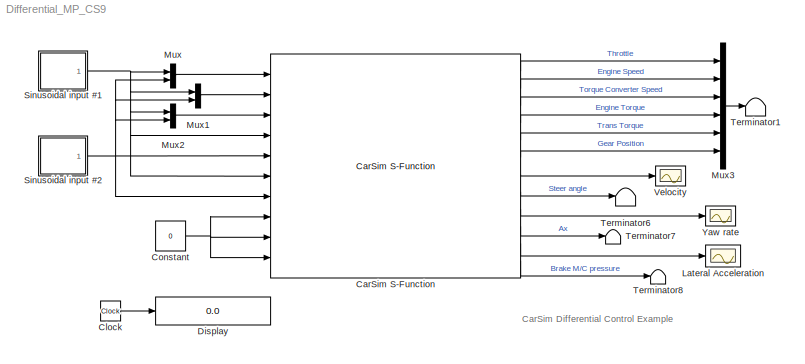
MODEL Differential_MP_CS9
KIND model
BLOCK [Reference] CarSim S-Function  REF=Solver_SF/CarSim S-Function
  Ports = [10, 12]
  Priority = 1
  SID = 1
  SIMFILE = simfile.sim
  SourceBlock = Solver_SF/CarSim S-Function
  SourceType = Vehicle math model library
BLOCK [Clock] Clock
  Decimation = 10
  SID = 2
BLOCK [Constant] Constant
  SID = 3
  Value = 0
BLOCK [Display] Display
  Decimation = 100
  Format = bank
  Lockdown = off
  Ports = [1]
  SID = 4
BLOCK [Scope] Lateral Acceleration
  DataFormat = Array
  Floating = off
  LimitDataPoints = off
  NumInputPorts = 1
  Ports = [1]
  SID = 5
  SampleTime = 100
  TickLabels = on
  YMax = 1
  YMin = -1
  ZoomMode = yonly
BLOCK [Mux] Mux
  DisplayOption = bar
  Inputs = 2
  Ports = [2, 1]
  SID = 6
BLOCK [Mux] Mux1
  DisplayOption = bar
  Inputs = 2
  Ports = [2, 1]
  SID = 7
BLOCK [Mux] Mux2
  DisplayOption = bar
  Inputs = 2
  Ports = [2, 1]
  SID = 8
BLOCK [Mux] Mux3
  DisplayOption = bar
  Inputs = 6
  Ports = [6, 1]
  SID = 9
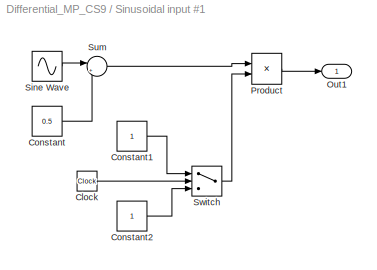
BLOCK [SubSystem] Sinusoidal input #1
  FunctionWithSeparateData = off
  MaskHideContents = off
  MinAlgLoopOccurrences = off
  Opaque = off
  Ports = [0, 1]
  PropExecContextOutsideSubsystem = off
  RTWSystemCode = Auto
  RequestExecContextInheritance = off
  SID = 10
BLOCK [Clock] Sinusoidal input #1/Clock
  Decimation = 10
  SID = 11
BLOCK [Constant] Sinusoidal input #1/Constant
  SID = 12
  Value = 0.5
BLOCK [Constant] Sinusoidal input #1/Constant1
  SID = 13
BLOCK [Constant] Sinusoidal input #1/Constant2
  SID = 14
BLOCK [Outport] Sinusoidal input #1/Out1
  IconDisplay = Port number
  SID = 19
BLOCK [Product] Sinusoidal input #1/Product
  Ports = [2, 1]
  RndMeth = Floor
  SID = 15
BLOCK [Sin] Sinusoidal input #1/Sine Wave
  Amplitude = 0.5
  Frequency = 0.25*2*pi
  Phase = 3/2*pi
  Ports = [0, 1]
  SID = 16
  SampleTime = 0
BLOCK [Sum] Sinusoidal input #1/Sum
  IconShape = round
  Inputs = |++
  Ports = [2, 1]
  SID = 17
BLOCK [Switch] Sinusoidal input #1/Switch
  SID = 18
  Threshold = 2
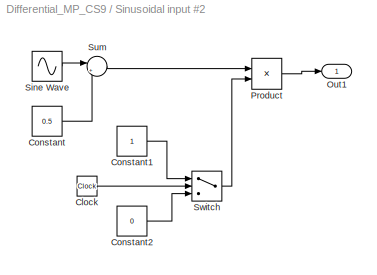
BLOCK [SubSystem] Sinusoidal input #2
  FunctionWithSeparateData = off
  MaskHideContents = off
  MinAlgLoopOccurrences = off
  Opaque = off
  Ports = [0, 1]
  PropExecContextOutsideSubsystem = off
  RTWSystemCode = Auto
  RequestExecContextInheritance = off
  SID = 20
BLOCK [Clock] Sinusoidal input #2/Clock
  Decimation = 10
  SID = 21
BLOCK [Constant] Sinusoidal input #2/Constant
  SID = 22
  Value = 0.5
BLOCK [Constant] Sinusoidal input #2/Constant1
  SID = 23
BLOCK [Constant] Sinusoidal input #2/Constant2
  SID = 24
  Value = 0
BLOCK [Outport] Sinusoidal input #2/Out1
  IconDisplay = Port number
  SID = 29
BLOCK [Product] Sinusoidal input #2/Product
  Ports = [2, 1]
  RndMeth = Floor
  SID = 25
BLOCK [Sin] Sinusoidal input #2/Sine Wave
  Amplitude = 0.5
  Frequency = 0.25*2*pi
  Phase = 1/2*pi
  Ports = [0, 1]
  SID = 26
  SampleTime = 0
BLOCK [Sum] Sinusoidal input #2/Sum
  IconShape = round
  Inputs = |++
  Ports = [2, 1]
  SID = 27
BLOCK [Switch] Sinusoidal input #2/Switch
  SID = 28
  Threshold = 2
BLOCK [Terminator] Terminator1
  SID = 30
BLOCK [Terminator] Terminator6
  SID = 31
BLOCK [Terminator] Terminator7
  SID = 32
BLOCK [Terminator] Terminator8
  SID = 33
BLOCK [Scope] Velocity
  DataFormat = Array
  Floating = off
  LimitDataPoints = off
  NumInputPorts = 1
  Ports = [1]
  SID = 34
  SampleTime = 100
  TickLabels = on
  YMax = 200
  YMin = 0
  ZoomMode = yonly
BLOCK [Scope] Yaw rate
  DataFormat = Array
  Floating = off
  LimitDataPoints = off
  NumInputPorts = 1
  Ports = [1]
  SID = 35
  SampleTime = 100
  TickLabels = on
  YMax = 20
  YMin = -20
  ZoomMode = yonly
ANNOTATION (root): CarSim Differential Control Example
LINE CarSim S-Function:1 -> Mux3:1
LINE CarSim S-Function:10 -> Terminator7:1
LINE CarSim S-Function:11 -> Lateral Acceleration:1
LINE CarSim S-Function:12 -> Terminator8:1
LINE CarSim S-Function:2 -> Mux3:2
LINE CarSim S-Function:3 -> Mux3:3
LINE CarSim S-Function:4 -> Mux3:4
LINE CarSim S-Function:5 -> Mux3:5
LINE CarSim S-Function:6 -> Mux3:6
LINE CarSim S-Function:7 -> Velocity:1
LINE CarSim S-Function:8 -> Terminator6:1
LINE CarSim S-Function:9 -> Yaw rate:1
LINE Clock:1 -> Display:1
NET Constant:1 -> CarSim S-Function:10, CarSim S-Function:8, CarSim S-Function:9
LINE Mux1:1 -> CarSim S-Function:2
LINE Mux2:1 -> CarSim S-Function:3
LINE Mux3:1 -> Terminator1:1
LINE Mux:1 -> CarSim S-Function:1
LINE Sinusoidal input #1/Clock:1 -> Sinusoidal input #1/Switch:2
LINE Sinusoidal input #1/Constant1:1 -> Sinusoidal input #1/Switch:1
LINE Sinusoidal input #1/Constant2:1 -> Sinusoidal input #1/Switch:3
LINE Sinusoidal input #1/Constant:1 -> Sinusoidal input #1/Sum:2
LINE Sinusoidal input #1/Product:1 -> Sinusoidal input #1/Out1:1
LINE Sinusoidal input #1/Sine Wave:1 -> Sinusoidal input #1/Sum:1
LINE Sinusoidal input #1/Sum:1 -> Sinusoidal input #1/Product:1
LINE Sinusoidal input #1/Switch:1 -> Sinusoidal input #1/Product:2
NET Sinusoidal input #1:1 -> CarSim S-Function:4, CarSim S-Function:6, Mux1:1, Mux2:1, Mux:1
LINE Sinusoidal input #2/Clock:1 -> Sinusoidal input #2/Switch:2
LINE Sinusoidal input #2/Constant1:1 -> Sinusoidal input #2/Switch:1
LINE Sinusoidal input #2/Constant2:1 -> Sinusoidal input #2/Switch:3
LINE Sinusoidal input #2/Constant:1 -> Sinusoidal input #2/Sum:2
LINE Sinusoidal input #2/Product:1 -> Sinusoidal input #2/Out1:1
LINE Sinusoidal input #2/Sine Wave:1 -> Sinusoidal input #2/Sum:1
LINE Sinusoidal input #2/Sum:1 -> Sinusoidal input #2/Product:1
LINE Sinusoidal input #2/Switch:1 -> Sinusoidal input #2/Product:2
NET Sinusoidal input #2:1 -> CarSim S-Function:5, CarSim S-Function:7, Mux1:2, Mux2:2, Mux:2
note: NET lines group one-source signal fan-out (src -> all destinations, sorted); 1:1 wires keep LINE
